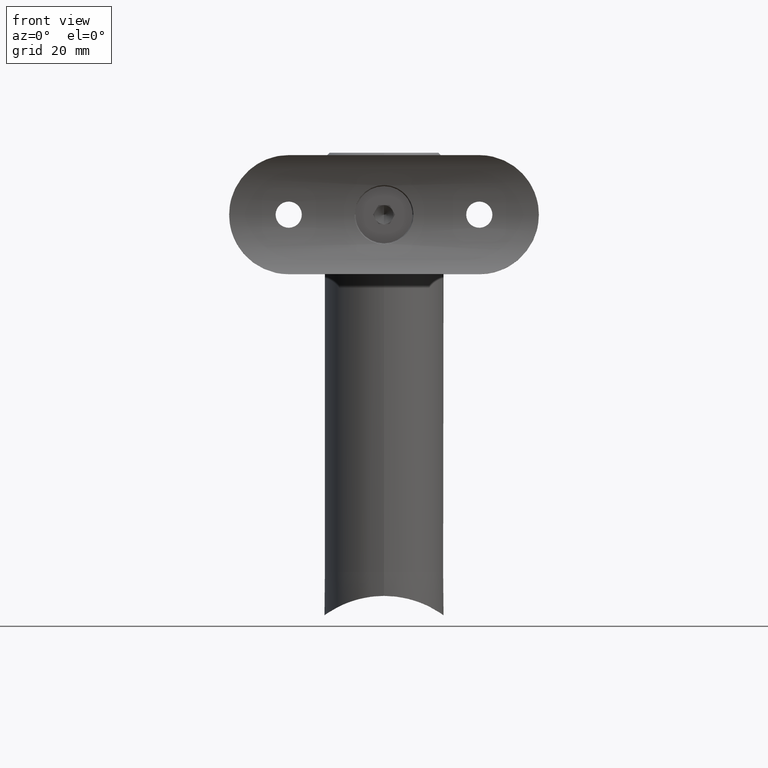
[diagram: clean part render]
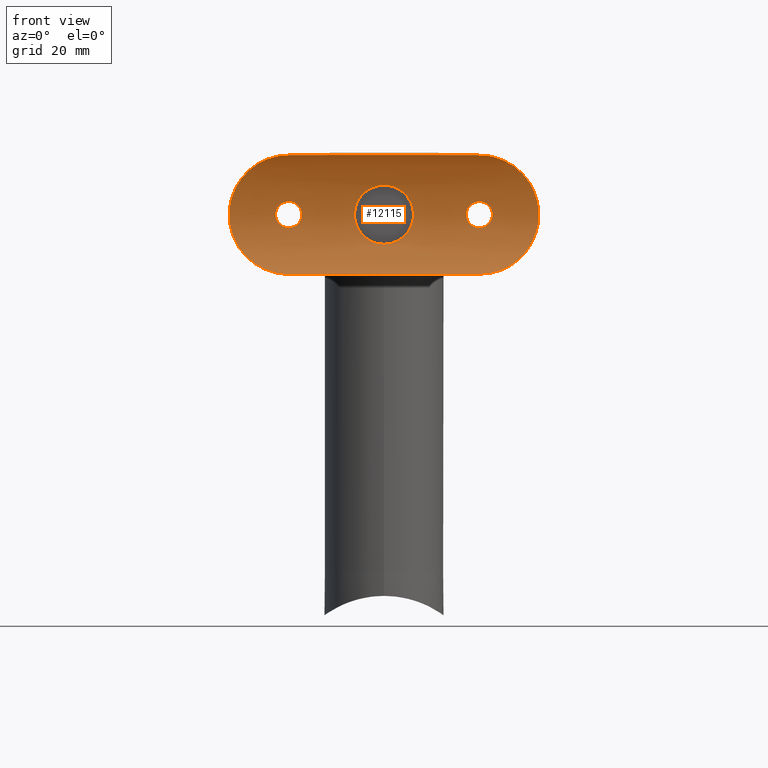
[diagram: same view with one face highlighted and labeled with its STEP entity id]
A machine part, front view. The second image highlights one B-rep face of the part: STEP entity #12115.
In plain terms, the highlighted cylindrical surface (partial cylindrical patch) has radius 21.2 mm, axis along (1, -0, -0).
Its self-contained STEP definition (entity closure, byte-faithful):
#24 = CARTESIAN_POINT ( 'NONE',  ( 0.000000000000000000, 25.19999999999999929, 32.50000000000000000 ) ) ;
#118 = CARTESIAN_POINT ( 'NONE',  ( 0.2030368414505796248, 4.000000000000000000, 6.199999999999997513 ) ) ;
#190 = CARTESIAN_POINT ( 'NONE',  ( 0.4062759576758470659, 4.002916140720868654, 6.190051217244710635 ) ) ;
#231 = CARTESIAN_POINT ( 'NONE',  ( -9.137400882198218000, 6.067735843547091612, -28.53911077795326889 ) ) ;
#314 = CARTESIAN_POINT ( 'NONE',  ( 7.592416288989400845E-16, 3.999999999999999112, 6.200000000000000178 ) ) ;
#345 = CARTESIAN_POINT ( 'NONE',  ( -2.732448131527089874, 4.176798623020333778, 19.64083347463661511 ) ) ;
#478 = CARTESIAN_POINT ( 'NONE',  ( 0.000000000000000000, 4.000000000000003553, 32.50000000000000000 ) ) ;
#606 = CARTESIAN_POINT ( 'NONE',  ( -3.786629156918399630, 4.338142867486670440, 4.925906886092637826 ) ) ;
#665 = CARTESIAN_POINT ( 'NONE',  ( -3.115573705378211322, 4.227426388833972482, 5.375529695651892759 ) ) ;
#679 = CARTESIAN_POINT ( 'NONE',  ( 3.367779122181911787E-16, 3.999999999999998224, 22.75000000000000000 ) ) ;
#734 = CARTESIAN_POINT ( 'NONE',  ( -5.881789180924415383, 4.831612074386678835, 2.003047415504014328 ) ) ;
#757 = B_SPLINE_CURVE_WITH_KNOTS ( 'NONE', 3,
 ( #10569, #4041, #8969, #5611, #13537, #15120, #1141, #16719, #12159, #19819, #5673, #5886, #17621, #8178, #8047, #12793, #19192, #16098, #5063, #6671, #19049, #17689, #5134, #6742, #9872, #11493, #16242, #6818, #13203, #11562, #13396, #8639, #2375, #3970 ),
 .UNSPECIFIED., .F., .F.,
 ( 4, 2, 2, 2, 2, 2, 2, 2, 2, 2, 2, 2, 2, 2, 2, 2, 4 ),
 ( 0.000000000000000000, 0.0005379262171995833914, 0.001075852434399166566, 0.001613778651598749741, 0.002151704868798332698, 0.002689631085997915873, 0.003227557303197499047, 0.003765483520397081788, 0.004303409737596664529, 0.004841335954796247704, 0.005379262171995830878, 0.005917188389195414920, 0.006455114606394998095, 0.006993040823594581269, 0.007530967040794164444, 0.008068893257993748486, 0.008606819475193330793 ),
 .UNSPECIFIED. ) ;
#782 = CARTESIAN_POINT ( 'NONE',  ( 0.8866782665786225870, 4.017902508735802236, 22.60928778284144514 ) ) ;
#801 = CARTESIAN_POINT ( 'NONE',  ( -5.880518383112274705, 4.831262036951020633, -2.005760101010093166 ) ) ;
#846 = EDGE_CURVE ( 'NONE', #1808, #6235, #16949, .T. ) ;
#865 = CARTESIAN_POINT ( 'NONE',  ( -0.8127858873897744196, 4.011750783907844564, 6.160182076640255744 ) ) ;
#886 = CARTESIAN_POINT ( 'NONE',  ( 2.609840854434543722, 4.161141973927123594, -20.88526086944559879 ) ) ;
#891 = CARTESIAN_POINT ( 'NONE',  ( 2.899666870893740089, 4.195241269652991711, 32.16611798350432139 ) ) ;
#915 = CARTESIAN_POINT ( 'NONE',  ( 0.7132524485124351887, 4.011257119951380901, 22.66205717100720207 ) ) ;
#1010 = CARTESIAN_POINT ( 'NONE',  ( 2.385756333773413562, 4.134429975355512710, -18.62054771452227442 ) ) ;
#1081 = CARTESIAN_POINT ( 'NONE',  ( 0.8904061588435627783, 4.018060069706596238, -22.60801385164950617 ) ) ;
#1141 = CARTESIAN_POINT ( 'NONE',  ( -1.378123184462039408, 4.044310109982501622, -22.38653694269787664 ) ) ;
#1213 = CARTESIAN_POINT ( 'NONE',  ( 12.50000000000000355, 8.077208171562681116, 20.84935178333090988 ) ) ;
#1219 = EDGE_CURVE ( 'NONE', #6235, #1808, #18644, .T. ) ;
#1324 = CARTESIAN_POINT ( 'NONE',  ( 6.199815462031645907, 4.926808631255473969, -0.4097143991521178252 ) ) ;
#1419 = VERTEX_POINT ( 'NONE', #2159 ) ;
#1463 = CARTESIAN_POINT ( 'NONE',  ( 1.680376849083645263, 4.050750502668659436, -32.41446829867825841 ) ) ;
#1599 = CARTESIAN_POINT ( 'NONE',  ( 1.017672897940636423, 4.023491260540420278, 6.119313430627518535 ) ) ;
#1604 = B_SPLINE_CURVE_WITH_KNOTS ( 'NONE', 3,
 ( #16068, #2021, #8217, #915, #782, #19717, #16694, #5585, #11799, #8805, #14821, #15088, #5386, #10325, #6987, #16488, #18053, #8672, #2346, #16551, #13302, #5642, #11860, #13438, #16620, #19786, #10260, #18184, #7248, #7115, #19855, #8741, #10396, #4009 ),
 .UNSPECIFIED., .F., .F.,
 ( 4, 2, 2, 2, 2, 2, 2, 2, 2, 2, 2, 2, 2, 2, 2, 2, 4 ),
 ( 0.008606819475193330793, 0.009144616342346784110, 0.009682413209500237428, 0.01022021007665369075, 0.01075800694380714406, 0.01129580381096059565, 0.01183360067811404896, 0.01237139754526750228, 0.01290919441242095560, 0.01344699127957440891, 0.01398478814672786223, 0.01452258501388131381, 0.01506038188103476713, 0.01559817874818822218, 0.01613597561534167724, 0.01667377248249512708, 0.01721156934964858040 ),
 .UNSPECIFIED. ) ;
#1808 = VERTEX_POINT ( 'NONE', #9475 ) ;
#1845 = CARTESIAN_POINT ( 'NONE',  ( -12.49999999999999822, 8.077208171562684669, 20.84887060648279089 ) ) ;
#1848 = CARTESIAN_POINT ( 'NONE',  ( 9.413556458363910195, 6.194533709361365048, -28.26249860773988942 ) ) ;
#1874 = CARTESIAN_POINT ( 'NONE',  ( 12.41450038045377369, 8.013930239834728297, -21.67799915308982506 ) ) ;
#1899 = ORIENTED_EDGE ( 'NONE', *, *, #17462, .T. ) ;
#1916 = CARTESIAN_POINT ( 'NONE',  ( -2.750066109718240615, 4.179126174284532702, 20.17856011520192538 ) ) ;
#1977 = CARTESIAN_POINT ( 'NONE',  ( -12.41450038045377013, 8.013930239834728297, 21.67799915308982150 ) ) ;
#2021 = CARTESIAN_POINT ( 'NONE',  ( 0.1795313291912454257, 3.999999999999999112, 22.75000000000000000 ) ) ;
#2051 = CARTESIAN_POINT ( 'NONE',  ( 0.000000000000000000, 4.000000000000003553, 17.25000000000000000 ) ) ;
#2109 = ORIENTED_EDGE ( 'NONE', *, *, #17063, .F. ) ;
#2127 = CARTESIAN_POINT ( 'NONE',  ( -7.329839308601783898, 5.304310467230258119, 30.13339322785993701 ) ) ;
#2159 = CARTESIAN_POINT ( 'NONE',  ( -12.49999999999999645, 8.077208171562682892, -20.00000000000000355 ) ) ;
#2160 = CARTESIAN_POINT ( 'NONE',  ( 3.367779122181911787E-16, 3.999999999999998224, -17.25000000000000000 ) ) ;
#2175 = CARTESIAN_POINT ( 'NONE',  ( 0.000000000000000000, 4.000000000000003553, -32.50000000000000000 ) ) ;
#2179 = CARTESIAN_POINT ( 'NONE',  ( -5.040362975952087154, 4.607573317518929734, 3.615960530335528667 ) ) ;
#2235 = CARTESIAN_POINT ( 'NONE',  ( -4.094807073670160058, 4.398608595898156892, -4.659780459620763260 ) ) ;
#2252 = DIRECTION ( 'NONE',  ( 0.000000000000000000, 0.000000000000000000, -1.000000000000000000 ) ) ;
#2346 = CARTESIAN_POINT ( 'NONE',  ( 2.732401257049309251, 4.176793343845547568, 19.64134432217261406 ) ) ;
#2375 = CARTESIAN_POINT ( 'NONE',  ( -0.1795745097806660806, 3.999999999999999112, -17.25000000000000355 ) ) ;
#2383 = CARTESIAN_POINT ( 'NONE',  ( 12.49999999999999645, 8.077208171562682892, 32.50000000000000000 ) ) ;
#2398 = CARTESIAN_POINT ( 'NONE',  ( 0.000000000000000000, 4.000000000000003553, 32.50000000000000000 ) ) ;
#2425 = CARTESIAN_POINT ( 'NONE',  ( 0.000000000000000000, 4.000000000000003553, -6.200000000000000178 ) ) ;
#2428 = CARTESIAN_POINT ( 'NONE',  ( -6.149123077008092686, 4.911364389243151329, 0.8185882661226046020 ) ) ;
#2445 = CARTESIAN_POINT ( 'NONE',  ( 2.661687631057439773, 4.167723121593580160, -19.28582453466965063 ) ) ;
#2660 = CARTESIAN_POINT ( 'NONE',  ( 1.678074891520452860, 4.065981542221561718, -17.81386429844008745 ) ) ;
#2791 = CARTESIAN_POINT ( 'NONE',  ( 8.281128637814752835, 5.681454197595393829, 29.37193506601935766 ) ) ;
#2891 = CARTESIAN_POINT ( 'NONE',  ( 0.000000000000000000, 4.000000000000003553, -6.200000000000000178 ) ) ;
#2959 = CARTESIAN_POINT ( 'NONE',  ( 5.999845100848646418, 4.866559966669621318, 1.614636308907438034 ) ) ;
#3110 = CARTESIAN_POINT ( 'NONE',  ( 6.159285855167618173, 4.914287723189210588, 0.8175508538016790228 ) ) ;
#3224 = CARTESIAN_POINT ( 'NONE',  ( -9.913493343117119494, 6.458488917965730991, -27.62450805720244063 ) ) ;
#3302 = CARTESIAN_POINT ( 'NONE',  ( -12.06337854131604104, 7.766211032369477074, -23.30110932669051138 ) ) ;
#3328 = B_SPLINE_CURVE_WITH_KNOTS ( 'NONE', 3,
 ( #18850, #6060, #18643, #7918, #14040, #17211, #17427, #3368, #9757, #9617, #8127, #5077, #14457, #231, #17700, #3224, #3497, #14244, #19206, #15833, #4864, #3302, #12735, #4804, #16112, #8193 ),
 .UNSPECIFIED., .F., .F.,
 ( 4, 2, 2, 2, 2, 2, 2, 2, 2, 2, 2, 2, 4 ),
 ( 0.000000000000000000, 0.002504973849704560367, 0.003757460774556842503, 0.005009947699409125071, 0.007514921549113700618, 0.008767408473965990559, 0.01001989539881828310, 0.01127238232367057391, 0.01252486924852286646, 0.01502984309822744460, 0.01628233002307974062, 0.01753481694793203316, 0.02003979079763661131 ),
 .UNSPECIFIED. ) ;
#3329 = FACE_OUTER_BOUND ( 'NONE', #5352, .T. ) ;
#3368 = CARTESIAN_POINT ( 'NONE',  ( -5.620540116801275410, 4.743934902012521881, -31.19511631914028982 ) ) ;
#3497 = CARTESIAN_POINT ( 'NONE',  ( -10.15465027284116317, 6.588481366190972466, -27.30023861733291213 ) ) ;
#3558 = CARTESIAN_POINT ( 'NONE',  ( -9.413556458363908419, 6.194533709361361495, 28.26249860773988232 ) ) ;
#3631 = CARTESIAN_POINT ( 'NONE',  ( -1.378123184462039408, 4.044310109982501622, 17.61346305730212691 ) ) ;
#3695 = CARTESIAN_POINT ( 'NONE',  ( -3.307977677724411869, 4.255752225252749987, 32.06158553790278631 ) ) ;
#3708 = VERTEX_POINT ( 'NONE', #6527 ) ;
#3827 = CARTESIAN_POINT ( 'NONE',  ( -3.113274347633549155, 4.227071444589109994, -5.376930453545246458 ) ) ;
#3896 = CARTESIAN_POINT ( 'NONE',  ( -4.926415323581236017, 4.579015012586133082, -3.786363308942862105 ) ) ;
#3903 = CARTESIAN_POINT ( 'NONE',  ( -1.677753435559828699, 4.065965523637380841, 22.18625452600545955 ) ) ;
#3958 = CARTESIAN_POINT ( 'NONE',  ( -6.001055605421503181, 4.866918079478865344, -1.610286533790262764 ) ) ;
#3969 = CARTESIAN_POINT ( 'NONE',  ( -0.7148038119665011125, 4.011319192678680423, 22.66156243700921280 ) ) ;
#3970 = CARTESIAN_POINT ( 'NONE',  ( 3.367779122181911787E-16, 3.999999999999998224, -17.25000000000000000 ) ) ;
#4009 = CARTESIAN_POINT ( 'NONE',  ( 0.000000000000000000, 4.000000000000003553, 17.25000000000000000 ) ) ;
#4030 = CARTESIAN_POINT ( 'NONE',  ( -2.010948507461656209, 4.092239804135303416, -5.878775317708504033 ) ) ;
#4041 = CARTESIAN_POINT ( 'NONE',  ( -0.1819051431628466997, 4.000000000000004441, -22.74999999999999645 ) ) ;
#4049 = CARTESIAN_POINT ( 'NONE',  ( 2.472041895201342765, 4.144506056729611032, -21.21818100494817472 ) ) ;
#4113 = ORIENTED_EDGE ( 'NONE', *, *, #846, .T. ) ;
#4125 = CARTESIAN_POINT ( 'NONE',  ( 3.302492734939012298, 4.254893961373074518, 32.06307353030366158 ) ) ;
#4183 = CARTESIAN_POINT ( 'NONE',  ( 2.470320627314232631, 4.144303149418656851, -18.77831722767231781 ) ) ;
#4248 = CARTESIAN_POINT ( 'NONE',  ( 2.749871213976514461, 4.179100677581973677, -19.81625335284126876 ) ) ;
#4253 = CARTESIAN_POINT ( 'NONE',  ( 12.06337854131604459, 7.766211032369483291, 23.30110932669050783 ) ) ;
#4433 = CARTESIAN_POINT ( 'NONE',  ( 7.341278511869139045, 5.308480845423155792, 30.12523760879152945 ) ) ;
#4502 = CARTESIAN_POINT ( 'NONE',  ( 12.16642152362135576, 7.838305269537123365, 22.89829279892429170 ) ) ;
#4549 = CARTESIAN_POINT ( 'NONE',  ( 4.663190020617145493, 4.518800532355244037, 4.090909915203146952 ) ) ;
#4553 = CARTESIAN_POINT ( 'NONE',  ( 5.620677554943403820, 4.744079628429565432, -31.19483348254707167 ) ) ;
#4617 = B_SPLINE_CURVE_WITH_KNOTS ( 'NONE', 3,
 ( #19759, #13549, #10299, #891, #4125, #18290, #12032, #7563, #15404, #4433, #15333, #2791, #5970, #15265, #13685, #16989, #6039, #7492, #10513, #13809, #12099, #4253, #4502, #18492, #1213, #12170 ),
 .UNSPECIFIED., .F., .F.,
 ( 4, 2, 2, 2, 2, 2, 2, 2, 2, 2, 2, 2, 4 ),
 ( 0.000000000000000000, 0.002504973849704574245, 0.003757460774556858982, 0.005009947699409142419, 0.007514921549113717965, 0.008767408473966002702, 0.01001989539881828657, 0.01127238232367057218, 0.01252486924852285778, 0.01502984309822744113, 0.01628233002307973715, 0.01753481694793202969, 0.02003979079763661478 ),
 .UNSPECIFIED. ) ;
#4667 = DIRECTION ( 'NONE',  ( 0.000000000000000000, 0.000000000000000000, -1.000000000000000000 ) ) ;
#4804 = CARTESIAN_POINT ( 'NONE',  ( -12.41439949553292443, 8.013851170719201278, -21.67938694774175090 ) ) ;
#4834 = VERTEX_POINT ( 'NONE', #2160 ) ;
#4864 = CARTESIAN_POINT ( 'NONE',  ( -11.81770469574649063, 7.598751313526324935, -24.09442063569179027 ) ) ;
#4993 = CARTESIAN_POINT ( 'NONE',  ( -2.608905194646346626, 4.161026952861326400, 19.11220103331600484 ) ) ;
#5062 = CARTESIAN_POINT ( 'NONE',  ( -2.071631555332959174, 4.101077549125282218, 18.18259656438756977 ) ) ;
#5063 = CARTESIAN_POINT ( 'NONE',  ( -2.732132821934195821, 4.176757944270250711, -19.63901098424382852 ) ) ;
#5077 = CARTESIAN_POINT ( 'NONE',  ( -8.281128637814752835, 5.681454197595392053, -29.37193506601935411 ) ) ;
#5134 = CARTESIAN_POINT ( 'NONE',  ( -2.385800123763040403, 4.134436225150952993, -18.62067939128672833 ) ) ;
#5254 = VERTEX_POINT ( 'NONE', #2175 ) ;
#5282 = CARTESIAN_POINT ( 'NONE',  ( -1.676932437200537862, 4.065896379661495530, 17.81306614378071274 ) ) ;
#5352 = EDGE_LOOP ( 'NONE', ( #17104, #14109, #1899, #8450, #16704, #11379 ) ) ;
#5386 = CARTESIAN_POINT ( 'NONE',  ( 2.470320627314232631, 4.144303149418655963, 21.22168277232767863 ) ) ;
#5392 = CARTESIAN_POINT ( 'NONE',  ( -12.49999999999999645, 8.077208171562682892, 20.00000000000000000 ) ) ;
#5403 = CARTESIAN_POINT ( 'NONE',  ( -12.49999999999999645, 8.077208171562682892, 32.50000000000004974 ) ) ;
#5406 = CARTESIAN_POINT ( 'NONE',  ( -5.379690077919871527, 4.692598300684345247, -3.108866306751584929 ) ) ;
#5416 = CARTESIAN_POINT ( 'NONE',  ( -0.8862475435800301060, 4.017876742908403465, 22.60950864251029202 ) ) ;
#5470 = CARTESIAN_POINT ( 'NONE',  ( -1.615120754472902043, 4.057837982230971363, -5.999738083962667723 ) ) ;
#5585 = CARTESIAN_POINT ( 'NONE',  ( 1.678074891520452860, 4.065981542221561718, 22.18613570155991255 ) ) ;
#5610 = CARTESIAN_POINT ( 'NONE',  ( -2.186773948034176573, 4.112846586535696680, 21.67707700251596847 ) ) ;
#5611 = CARTESIAN_POINT ( 'NONE',  ( -0.7124931324106921204, 4.011245734592163714, -22.66214424227139546 ) ) ;
#5627 = EDGE_CURVE ( 'NONE', #12368, #4834, #757, .T. ) ;
#5642 = CARTESIAN_POINT ( 'NONE',  ( 2.472041895201343653, 4.144506056729611032, 18.78181899505182528 ) ) ;
#5673 = CARTESIAN_POINT ( 'NONE',  ( -2.185395019286269669, 4.112698827525288259, -21.67905958301374270 ) ) ;
#5679 = CARTESIAN_POINT ( 'NONE',  ( 2.750127420739392203, 4.179134195129149631, -20.17987132482983981 ) ) ;
#5756 = CARTESIAN_POINT ( 'NONE',  ( 0.8866782665786225870, 4.017902508735803124, -17.39071221715855131 ) ) ;
#5772 = CARTESIAN_POINT ( 'NONE',  ( 10.82196766755579453, 6.962884092408003767, -26.30774772896643654 ) ) ;
#5826 = CARTESIAN_POINT ( 'NONE',  ( 0.7132524485124351887, 4.011257119951380012, -17.33794282899279438 ) ) ;
#5840 = EDGE_LOOP ( 'NONE', ( #9234, #8498 ) ) ;
#5886 = CARTESIAN_POINT ( 'NONE',  ( -2.386425186726742531, 4.134502214352236749, -21.37846556060996761 ) ) ;
#5893 = CARTESIAN_POINT ( 'NONE',  ( 1.380612209768696808, 4.044466479386152891, -22.38518657137107581 ) ) ;
#5944 = CARTESIAN_POINT ( 'NONE',  ( 5.647136009984151883, 4.765801619651585774, 2.567385003801225363 ) ) ;
#5970 = CARTESIAN_POINT ( 'NONE',  ( 8.575483413111351538, 5.809365382594063654, 29.10327369640210193 ) ) ;
#6039 = CARTESIAN_POINT ( 'NONE',  ( 10.15465027284116317, 6.588481366190970689, 27.30023861733291213 ) ) ;
#6060 = CARTESIAN_POINT ( 'NONE',  ( -0.8482395851185927649, 4.000000000000004441, -32.50000000000000000 ) ) ;
#6153 = CARTESIAN_POINT ( 'NONE',  ( 4.096310951360306873, 4.397454258333616472, 4.671633161736810536 ) ) ;
#6156 = CARTESIAN_POINT ( 'NONE',  ( 4.105999603327870950, 4.397476152548235540, -31.81377709549067134 ) ) ;
#6218 = CARTESIAN_POINT ( 'NONE',  ( 2.903656776258744188, 4.195777031998702000, -32.16519419076993813 ) ) ;
#6235 = VERTEX_POINT ( 'NONE', #2425 ) ;
#6277 = DIRECTION ( 'NONE',  ( -1.000000000000000000, 0.000000000000000000, 0.000000000000000000 ) ) ;
#6363 = CARTESIAN_POINT ( 'NONE',  ( 0.8131667364258976516, 4.014623341798529310, 6.149841793466610973 ) ) ;
#6527 = CARTESIAN_POINT ( 'NONE',  ( 12.50000000000000355, 8.077208171562682892, -20.00000000000000355 ) ) ;
#6600 = CARTESIAN_POINT ( 'NONE',  ( -11.20502510935213358, 7.199201472346334896, 25.59990303977420467 ) ) ;
#6670 = CARTESIAN_POINT ( 'NONE',  ( -4.105999603327870950, 4.397476152548232875, 31.81377709549067845 ) ) ;
#6671 = CARTESIAN_POINT ( 'NONE',  ( -2.661820409375530883, 4.167739817158831350, -19.28615482461628616 ) ) ;
#6742 = CARTESIAN_POINT ( 'NONE',  ( -2.186773948034176573, 4.112846586535696680, -18.32292299748403863 ) ) ;
#6818 = CARTESIAN_POINT ( 'NONE',  ( -1.380068960992047122, 4.044440931482737867, -17.61463312970132833 ) ) ;
#6938 = CARTESIAN_POINT ( 'NONE',  ( -6.199976275218669564, 4.926857811692361366, 0.2050584408067449849 ) ) ;
#6987 = CARTESIAN_POINT ( 'NONE',  ( 2.661687631057439773, 4.167723121593580160, 20.71417546533034582 ) ) ;
#7077 = CARTESIAN_POINT ( 'NONE',  ( -5.375911654361290815, 4.691641794250568154, 3.114689684330423702 ) ) ;
#7115 = CARTESIAN_POINT ( 'NONE',  ( 0.8904061588435613350, 4.018060069706597126, 17.39198614835049739 ) ) ;
#7248 = CARTESIAN_POINT ( 'NONE',  ( 1.221068417309933096, 4.034547152056660480, 17.52946335822548107 ) ) ;
#7287 = CARTESIAN_POINT ( 'NONE',  ( 0.1818614021479880161, 4.000000000000004441, -22.75000000000000000 ) ) ;
#7356 = CARTESIAN_POINT ( 'NONE',  ( 3.367779122181911787E-16, 3.999999999999998224, -17.25000000000000000 ) ) ;
#7361 = B_SPLINE_CURVE_WITH_KNOTS ( 'NONE', 3,
 ( #7356, #8906, #12095, #5826, #5756, #10509, #18282, #2660, #13613, #13679, #13545, #1010, #4183, #13480, #2445, #16792, #4248, #5679, #8711, #12028, #886, #4049, #13749, #16725, #19894, #11967, #7419, #5893, #18362, #1081, #15327, #10435, #7287, #19957 ),
 .UNSPECIFIED., .F., .F.,
 ( 4, 2, 2, 2, 2, 2, 2, 2, 2, 2, 2, 2, 2, 2, 2, 2, 4 ),
 ( 0.008606819475193330793, 0.009144616342346784110, 0.009682413209500237428, 0.01022021007665368901, 0.01075800694380714233, 0.01129580381096059565, 0.01183360067811404723, 0.01237139754526750055, 0.01290919441242095386, 0.01344699127957440718, 0.01398478814672786050, 0.01452258501388131208, 0.01506038188103476540, 0.01559817874818821871, 0.01613597561534167030, 0.01667377248249512361, 0.01721156934964857693 ),
 .UNSPECIFIED. ) ;
#7419 = CARTESIAN_POINT ( 'NONE',  ( 1.681080587850646069, 4.066220009834251137, -22.18384365538448222 ) ) ;
#7492 = CARTESIAN_POINT ( 'NONE',  ( 10.82440004562426772, 6.964469962909634049, 26.30269686619442737 ) ) ;
#7563 = CARTESIAN_POINT ( 'NONE',  ( 5.620540116801272745, 4.743934902012521881, 31.19511631914027916 ) ) ;
#7605 = CARTESIAN_POINT ( 'NONE',  ( 2.757420443994034187, 4.176702735129016908, -5.567906872668626939 ) ) ;
#7736 = CARTESIAN_POINT ( 'NONE',  ( 3.112723415739962807, 4.226992834464526005, -5.377229253643299955 ) ) ;
#7807 = CARTESIAN_POINT ( 'NONE',  ( 4.669850002265738986, 4.518683000541095396, -4.098065572747930041 ) ) ;
#7916 = AXIS2_PLACEMENT_3D ( 'NONE', #24, #4667, #6277 ) ;
#7918 = CARTESIAN_POINT ( 'NONE',  ( -2.899666870893738757, 4.195241269652990823, -32.16611798350430007 ) ) ;
#8011 = EDGE_LOOP ( 'NONE', ( #10308, #2109 ) ) ;
#8015 = CARTESIAN_POINT ( 'NONE',  ( 2.004810271221212137, 4.091654728586200385, 5.880864991610112114 ) ) ;
#8047 = CARTESIAN_POINT ( 'NONE',  ( -2.661782999446305364, 4.167734782188002640, -20.71427211081360653 ) ) ;
#8127 = CARTESIAN_POINT ( 'NONE',  ( -7.664485972305215000, 5.431176652695318019, -29.88260659836541322 ) ) ;
#8177 = CARTESIAN_POINT ( 'NONE',  ( -6.328572668113499944, 4.954279635400570037, 30.80962434064442235 ) ) ;
#8178 = CARTESIAN_POINT ( 'NONE',  ( -2.608905194646344849, 4.161026952861326400, -20.88779896668399516 ) ) ;
#8193 = CARTESIAN_POINT ( 'NONE',  ( -12.49999999999999645, 8.077208171562682892, -20.00000000000000355 ) ) ;
#8217 = CARTESIAN_POINT ( 'NONE',  ( 0.3580975733128174410, 4.002280310842218469, 22.73258916872026347 ) ) ;
#8244 = CARTESIAN_POINT ( 'NONE',  ( -2.732132821934195821, 4.176757944270250711, 20.36098901575617859 ) ) ;
#8315 = CARTESIAN_POINT ( 'NONE',  ( -5.620677554943400267, 4.744079628429565432, 31.19483348254708943 ) ) ;
#8379 = CARTESIAN_POINT ( 'NONE',  ( -12.08472937843046857, 7.780467016947508974, 23.30072972297891454 ) ) ;
#8450 = ORIENTED_EDGE ( 'NONE', *, *, #17996, .F. ) ;
#8498 = ORIENTED_EDGE ( 'NONE', *, *, #10835, .F. ) ;
#8630 = CARTESIAN_POINT ( 'NONE',  ( -0.4119645630677282733, 4.000000000000004441, -6.200000000000001954 ) ) ;
#8639 = CARTESIAN_POINT ( 'NONE',  ( -0.3619936041940364779, 4.002356275409492348, -17.26800078217016576 ) ) ;
#8672 = CARTESIAN_POINT ( 'NONE',  ( 2.750127420739392203, 4.179134195129149631, 19.82012867517015309 ) ) ;
#8689 = CARTESIAN_POINT ( 'NONE',  ( -4.243914848844816845, 4.428619096507510733, -4.524331232725836927 ) ) ;
#8701 = CARTESIAN_POINT ( 'NONE',  ( -2.385800123763040403, 4.134436225150952993, 21.37932060871328233 ) ) ;
#8711 = CARTESIAN_POINT ( 'NONE',  ( 2.732401257049310139, 4.176793343845547568, -20.35865567782738594 ) ) ;
#8741 = CARTESIAN_POINT ( 'NONE',  ( 0.3616363690777163464, 4.002339231935220454, 17.26786438213851227 ) ) ;
#8773 = CARTESIAN_POINT ( 'NONE',  ( -1.380068960992047122, 4.044440931482737867, 22.38536687029867167 ) ) ;
#8805 = CARTESIAN_POINT ( 'NONE',  ( 2.070070275079196165, 4.100923494947652514, 21.81918506344151609 ) ) ;
#8906 = CARTESIAN_POINT ( 'NONE',  ( 0.1795313291912454257, 4.000000000000000000, -17.24999999999999645 ) ) ;
#8969 = CARTESIAN_POINT ( 'NONE',  ( -0.3607321243662356403, 4.002339135696566075, -22.73212934628676862 ) ) ;
#9154 = CARTESIAN_POINT ( 'NONE',  ( 5.378818155987182159, 4.692370203185661559, -3.110343844612701414 ) ) ;
#9224 = CARTESIAN_POINT ( 'NONE',  ( 5.870726965772577799, 4.828981579045524164, -2.003991366813224762 ) ) ;
#9234 = ORIENTED_EDGE ( 'NONE', *, *, #5627, .F. ) ;
#9293 = CARTESIAN_POINT ( 'NONE',  ( 6.159961913390981536, 4.914491676877350557, -0.8135405019375596680 ) ) ;
#9330 = CARTESIAN_POINT ( 'NONE',  ( 12.50000000000000355, 8.077208171562682892, 20.00000000000000000 ) ) ;
#9402 = CARTESIAN_POINT ( 'NONE',  ( 9.919985569846216933, 6.456967504733635010, -27.64830385797707279 ) ) ;
#9475 = CARTESIAN_POINT ( 'NONE',  ( 7.592416288989400845E-16, 3.999999999999999112, 6.200000000000000178 ) ) ;
#9573 = CARTESIAN_POINT ( 'NONE',  ( 1.618032308649836049, 4.058034776147023237, 5.999049208500471408 ) ) ;
#9604 = CARTESIAN_POINT ( 'NONE',  ( 8.570261194392806203, 5.807054850030223925, -29.10818890720388197 ) ) ;
#9617 = CARTESIAN_POINT ( 'NONE',  ( -7.341278511869139933, 5.308480845423154904, -30.12523760879152235 ) ) ;
#9742 = CARTESIAN_POINT ( 'NONE',  ( -2.185395019286269669, 4.112698827525288259, 18.32094041698626086 ) ) ;
#9757 = CARTESIAN_POINT ( 'NONE',  ( -6.332596659029534614, 4.955350400242432229, -30.80774938862475310 ) ) ;
#9809 = CARTESIAN_POINT ( 'NONE',  ( -9.919985569846220486, 6.456967504733637675, 27.64830385797707635 ) ) ;
#9832 = CARTESIAN_POINT ( 'NONE',  ( 3.367779122181911787E-16, 3.999999999999998224, 22.75000000000000000 ) ) ;
#9872 = CARTESIAN_POINT ( 'NONE',  ( -2.072974537964579422, 4.101199954475355902, -18.18391155527806902 ) ) ;
#9943 = CARTESIAN_POINT ( 'NONE',  ( -7.655030421865182788, 5.427483003039802689, 29.89001198582322161 ) ) ;
#10021 = CARTESIAN_POINT ( 'NONE',  ( -0.8487943003396123398, 4.000000000000004441, 32.50000000000000711 ) ) ;
#10086 = CARTESIAN_POINT ( 'NONE',  ( -1.219185299398134692, 4.034429665306586976, 22.47154956850333107 ) ) ;
#10145 = CARTESIAN_POINT ( 'NONE',  ( -4.663652792075827946, 4.518904683150087642, 4.090386201118042742 ) ) ;
#10222 = CARTESIAN_POINT ( 'NONE',  ( -1.816481100832602946, 4.077571559917686272, 22.07263047464326533 ) ) ;
#10260 = CARTESIAN_POINT ( 'NONE',  ( 1.681080587850646513, 4.066220009834252025, 17.81615634461552844 ) ) ;
#10292 = ORIENTED_EDGE ( 'NONE', *, *, #1219, .T. ) ;
#10299 = CARTESIAN_POINT ( 'NONE',  ( 1.678717414094957006, 4.050679987938036852, 32.41458363564551348 ) ) ;
#10308 = ORIENTED_EDGE ( 'NONE', *, *, #14944, .F. ) ;
#10325 = CARTESIAN_POINT ( 'NONE',  ( 2.608656701138332146, 4.160994223088358979, 20.88876488091199235 ) ) ;
#10396 = CARTESIAN_POINT ( 'NONE',  ( 0.1818614021479880716, 4.000000000000003553, 17.25000000000000355 ) ) ;
#10435 = CARTESIAN_POINT ( 'NONE',  ( 0.3616363690777175677, 4.002339231935220454, -22.73213561786149839 ) ) ;
#10458 = VERTEX_POINT ( 'NONE', #9330 ) ;
#10509 = CARTESIAN_POINT ( 'NONE',  ( 1.217645684097065528, 4.034348782382251919, -17.52777022303583010 ) ) ;
#10513 = CARTESIAN_POINT ( 'NONE',  ( 11.20516604691104412, 7.199313738460709544, 25.59920734051991076 ) ) ;
#10569 = CARTESIAN_POINT ( 'NONE',  ( 0.000000000000000000, 4.000000000000003553, -22.75000000000000000 ) ) ;
#10692 = CARTESIAN_POINT ( 'NONE',  ( 2.194976365919127481, 4.113092270295330977, -5.802009769465502842 ) ) ;
#10714 = EDGE_CURVE ( 'NONE', #10458, #3708, #14673, .T. ) ;
#10759 = CARTESIAN_POINT ( 'NONE',  ( 5.802187343198303537, 4.809289013939602953, -2.194383859389318125 ) ) ;
#10818 = CARTESIAN_POINT ( 'NONE',  ( 5.039919667627461131, 4.607463959195590597, 3.616591813798907484 ) ) ;
#10835 = EDGE_CURVE ( 'NONE', #4834, #12368, #7361, .T. ) ;
#10891 = CARTESIAN_POINT ( 'NONE',  ( 4.094326422246357566, 4.398512013746140425, -4.660215972866605050 ) ) ;
#10966 = CARTESIAN_POINT ( 'NONE',  ( 3.616965685610801451, 4.310132159675148955, -5.039689435510610771 ) ) ;
#11254 = CARTESIAN_POINT ( 'NONE',  ( 3.785642414934743183, 4.337972188704466880, 4.926613147122202996 ) ) ;
#11285 = CARTESIAN_POINT ( 'NONE',  ( -1.818257073104401655, 4.077733854882373166, 17.92911763614324983 ) ) ;
#11345 = CARTESIAN_POINT ( 'NONE',  ( -2.749933515456789657, 4.179108828000703824, 19.81940934927520459 ) ) ;
#11379 = ORIENTED_EDGE ( 'NONE', *, *, #17678, .T. ) ;
#11419 = CARTESIAN_POINT ( 'NONE',  ( -12.49999999999999645, 8.077208171562682892, 20.00000000000000000 ) ) ;
#11493 = CARTESIAN_POINT ( 'NONE',  ( -1.816481100832602946, 4.077571559917686272, -17.92736952535673467 ) ) ;
#11562 = CARTESIAN_POINT ( 'NONE',  ( -0.8862475435800301060, 4.017876742908403465, -17.39049135748971864 ) ) ;
#11620 = CARTESIAN_POINT ( 'NONE',  ( -5.567299139647666983, 4.743415462331245003, 2.759134503295393781 ) ) ;
#11667 = VERTEX_POINT ( 'NONE', #5392 ) ;
#11690 = CARTESIAN_POINT ( 'NONE',  ( -4.670038651656182260, 4.518727057530783853, -4.097838989356881179 ) ) ;
#11758 = CARTESIAN_POINT ( 'NONE',  ( -3.782044257028248868, 4.339475784268966407, -4.917025537896089205 ) ) ;
#11771 = CARTESIAN_POINT ( 'NONE',  ( 8.275097588008394567, 5.678865835620641178, -29.37734438678382531 ) ) ;
#11799 = CARTESIAN_POINT ( 'NONE',  ( 1.816424646654584807, 4.077575380348870127, 22.07249288101091977 ) ) ;
#11819 = CARTESIAN_POINT ( 'NONE',  ( -2.752732594556675849, 4.176112168670984559, 5.570115429931240314 ) ) ;
#11826 = CARTESIAN_POINT ( 'NONE',  ( -0.3619936041940364779, 4.002356275409492348, 22.73199921782984134 ) ) ;
#11860 = CARTESIAN_POINT ( 'NONE',  ( 2.387698105049156361, 4.134650465052295054, 18.62388857240058115 ) ) ;
#11890 = CARTESIAN_POINT ( 'NONE',  ( -0.1795745097806660806, 3.999999999999999112, 22.74999999999999645 ) ) ;
#11967 = CARTESIAN_POINT ( 'NONE',  ( 1.819301347328478036, 4.077824434303353840, -22.06995905193008056 ) ) ;
#12028 = CARTESIAN_POINT ( 'NONE',  ( 2.662694855646242864, 4.167851017011682480, -20.71042707611513478 ) ) ;
#12032 = CARTESIAN_POINT ( 'NONE',  ( 4.488656383330081212, 4.477012003651386962, 31.67346302616766351 ) ) ;
#12095 = CARTESIAN_POINT ( 'NONE',  ( 0.3580975733128175520, 4.002280310842218469, -17.26741083127973297 ) ) ;
#12099 = CARTESIAN_POINT ( 'NONE',  ( 11.81770469574649418, 7.598751313526327600, 24.09442063569178671 ) ) ;
#12115 = ADVANCED_FACE ( 'NONE', ( #19094, #3329, #19605, #15401 ), #12913, .F. ) ;
#12159 = CARTESIAN_POINT ( 'NONE',  ( -1.818257073104401655, 4.077733854882373166, -22.07088236385675373 ) ) ;
#12170 = CARTESIAN_POINT ( 'NONE',  ( 12.50000000000000355, 8.077208171562682892, 20.00000000000000000 ) ) ;
#12282 = CARTESIAN_POINT ( 'NONE',  ( 1.413523965907397484, 4.046238141739553207, -6.040123292295846547 ) ) ;
#12368 = VERTEX_POINT ( 'NONE', #19562 ) ;
#12489 = CARTESIAN_POINT ( 'NONE',  ( 0.4120760527752960756, 4.000000000000003553, -6.200000000000001066 ) ) ;
#12735 = CARTESIAN_POINT ( 'NONE',  ( -12.16642152362135221, 7.838305269537122477, -22.89829279892429170 ) ) ;
#12793 = CARTESIAN_POINT ( 'NONE',  ( -2.732448131527089874, 4.176798623020332890, -20.35916652536338489 ) ) ;
#12803 = VECTOR ( 'NONE', #13123, 1000.000000000000000 ) ;
#12861 = CARTESIAN_POINT ( 'NONE',  ( -2.386425186726742531, 4.134502214352236749, 18.62153443939003594 ) ) ;
#12913 = CYLINDRICAL_SURFACE ( 'NONE', #7916, 21.19999999999999929 ) ;
#13066 = CARTESIAN_POINT ( 'NONE',  ( -0.8872650160237223194, 4.017919217146488364, 17.39083392256410576 ) ) ;
#13123 = DIRECTION ( 'NONE',  ( 0.000000000000000000, 0.000000000000000000, -1.000000000000000000 ) ) ;
#13134 = CARTESIAN_POINT ( 'NONE',  ( -4.492959243642649092, 4.477970880216996186, 31.67175631405216762 ) ) ;
#13195 = CARTESIAN_POINT ( 'NONE',  ( -6.189693524949802850, 4.923704884041095298, 0.4116982302871525223 ) ) ;
#13203 = CARTESIAN_POINT ( 'NONE',  ( -1.219185299398134692, 4.034429665306586976, -17.52845043149667603 ) ) ;
#13259 = CARTESIAN_POINT ( 'NONE',  ( -3.617801870425997990, 4.310276163509416669, -5.039094580657917710 ) ) ;
#13302 = CARTESIAN_POINT ( 'NONE',  ( 2.609840854434543722, 4.161141973927123594, 19.11473913055440477 ) ) ;
#13317 = CARTESIAN_POINT ( 'NONE',  ( -4.526339774051667320, 4.488321750760214002, 4.241832482463385290 ) ) ;
#13386 = CARTESIAN_POINT ( 'NONE',  ( -4.097285383190190977, 4.397651019909458725, 4.670741988856835114 ) ) ;
#13396 = CARTESIAN_POINT ( 'NONE',  ( -0.7148038119665011125, 4.011319192678680423, -17.33843756299079786 ) ) ;
#13438 = CARTESIAN_POINT ( 'NONE',  ( 2.188337416416099135, 4.113007975951378903, 18.32489873322883156 ) ) ;
#13461 = CARTESIAN_POINT ( 'NONE',  ( -4.920353774008545678, 4.578470483296640303, 3.777702394039716527 ) ) ;
#13480 = CARTESIAN_POINT ( 'NONE',  ( 2.608656701138332590, 4.160994223088358979, -19.11123511908801120 ) ) ;
#13537 = CARTESIAN_POINT ( 'NONE',  ( -0.8872650160237223194, 4.017919217146488364, -22.60916607743589068 ) ) ;
#13545 = CARTESIAN_POINT ( 'NONE',  ( 2.186190614506500651, 4.112784812963469427, -18.32211666403967598 ) ) ;
#13549 = CARTESIAN_POINT ( 'NONE',  ( 0.8482395851185927649, 4.000000000000004441, 32.50000000000000000 ) ) ;
#13613 = CARTESIAN_POINT ( 'NONE',  ( 1.816424646654584363, 4.077575380348868350, -17.92750711898908378 ) ) ;
#13679 = CARTESIAN_POINT ( 'NONE',  ( 2.070070275079196609, 4.100923494947650738, -18.18081493655848391 ) ) ;
#13685 = CARTESIAN_POINT ( 'NONE',  ( 9.404962878365170198, 6.198203738630029491, 28.24361247481621717 ) ) ;
#13749 = CARTESIAN_POINT ( 'NONE',  ( 2.387698105049158137, 4.134650465052295054, -21.37611142759942240 ) ) ;
#13809 = CARTESIAN_POINT ( 'NONE',  ( 11.67708478872317279, 7.504780197938368147, 24.47882887395968510 ) ) ;
#13924 = CARTESIAN_POINT ( 'NONE',  ( 6.200183271553673769, 4.926921116018659674, 0.4041101969329987109 ) ) ;
#13987 = CARTESIAN_POINT ( 'NONE',  ( 4.919831195360602649, 4.578346002368051337, 3.778378767652526449 ) ) ;
#13990 = CARTESIAN_POINT ( 'NONE',  ( 3.307977677724412313, 4.255752225252753540, -32.06158553790278631 ) ) ;
#14040 = CARTESIAN_POINT ( 'NONE',  ( -3.302492734939010965, 4.254893961373074518, -32.06307353030366158 ) ) ;
#14109 = ORIENTED_EDGE ( 'NONE', *, *, #16753, .T. ) ;
#14137 = CARTESIAN_POINT ( 'NONE',  ( 5.881953071435676250, 4.831665205122884998, 2.002266604985728282 ) ) ;
#14244 = CARTESIAN_POINT ( 'NONE',  ( -10.82440004562427127, 6.964469962909638490, -26.30269686619442737 ) ) ;
#14443 = CARTESIAN_POINT ( 'NONE',  ( -0.3607321243662356403, 4.002339135696566075, 17.26787065371323493 ) ) ;
#14457 = CARTESIAN_POINT ( 'NONE',  ( -8.575483413111351538, 5.809365382594060101, -29.10327369640211614 ) ) ;
#14510 = CARTESIAN_POINT ( 'NONE',  ( -8.570261194392809756, 5.807054850030221260, 29.10818890720388197 ) ) ;
#14637 = VERTEX_POINT ( 'NONE', #2398 ) ;
#14650 = CARTESIAN_POINT ( 'NONE',  ( -2.471724177027320835, 4.144469781418969490, 18.78133150012136099 ) ) ;
#14673 = LINE ( 'NONE', #2383, #14928 ) ;
#14723 = CARTESIAN_POINT ( 'NONE',  ( -1.220232600810218226, 4.034489897479165421, 17.52896393627659322 ) ) ;
#14776 = B_SPLINE_CURVE_WITH_KNOTS ( 'NONE', 3,
 ( #2051, #19335, #14443, #19477, #13066, #14723, #3631, #5282, #11285, #5062, #9742, #12861, #14650, #4993, #16097, #345, #11345, #1916, #8244, #17814, #19258, #19615, #8701, #5610, #19680, #10222, #3903, #8773, #10086, #5416, #3969, #11826, #11890, #679 ),
 .UNSPECIFIED., .F., .F.,
 ( 4, 2, 2, 2, 2, 2, 2, 2, 2, 2, 2, 2, 2, 2, 2, 2, 4 ),
 ( 0.000000000000000000, 0.0005379262171995833914, 0.001075852434399166566, 0.001613778651598749741, 0.002151704868798332698, 0.002689631085997915873, 0.003227557303197499047, 0.003765483520397081788, 0.004303409737596664529, 0.004841335954796247704, 0.005379262171995830878, 0.005917188389195414920, 0.006455114606394998095, 0.006993040823594581269, 0.007530967040794164444, 0.008068893257993748486, 0.008606819475193330793 ),
 .UNSPECIFIED. ) ;
#14821 = CARTESIAN_POINT ( 'NONE',  ( 2.186190614506503760, 4.112784812963471204, 21.67788333596032402 ) ) ;
#14894 = EDGE_CURVE ( 'NONE', #11667, #14637, #16642, .T. ) ;
#14928 = VECTOR ( 'NONE', #2252, 1000.000000000000000 ) ;
#14944 = EDGE_CURVE ( 'NONE', #17652, #19904, #14776, .T. ) ;
#15036 = CARTESIAN_POINT ( 'NONE',  ( -0.4059638171716285493, 4.000000000000002665, 6.200000000000001066 ) ) ;
#15088 = CARTESIAN_POINT ( 'NONE',  ( 2.385756333773414894, 4.134429975355511822, 21.37945228547771848 ) ) ;
#15120 = CARTESIAN_POINT ( 'NONE',  ( -1.220232600810218226, 4.034489897479165421, -22.47103606372339968 ) ) ;
#15213 = CARTESIAN_POINT ( 'NONE',  ( 7.655030421865179235, 5.427483003039803577, -29.89001198582322516 ) ) ;
#15265 = CARTESIAN_POINT ( 'NONE',  ( 9.137400882198218000, 6.067735843547090724, 28.53911077795327600 ) ) ;
#15327 = CARTESIAN_POINT ( 'NONE',  ( 0.7170653856862926334, 4.011384657461851688, -22.66104549575494431 ) ) ;
#15333 = CARTESIAN_POINT ( 'NONE',  ( 7.664485972305213224, 5.431176652695318019, 29.88260659836541322 ) ) ;
#15383 = CARTESIAN_POINT ( 'NONE',  ( 6.039917699174432109, 4.878554705369112732, -1.414616173341549210 ) ) ;
#15401 = FACE_BOUND ( 'NONE', #8011, .T. ) ;
#15404 = CARTESIAN_POINT ( 'NONE',  ( 6.332596659029535502, 4.955350400242434006, 30.80774938862474954 ) ) ;
#15449 = CARTESIAN_POINT ( 'NONE',  ( 5.559235844677233196, 4.741634764411400305, 2.752432884436082805 ) ) ;
#15512 = CARTESIAN_POINT ( 'NONE',  ( 4.243572460115091260, 4.428548780966335308, -4.524655003014434129 ) ) ;
#15514 = CARTESIAN_POINT ( 'NONE',  ( 0.8487943003396115627, 4.000000000000004441, -32.50000000000000711 ) ) ;
#15580 = CARTESIAN_POINT ( 'NONE',  ( 4.525875190330411968, 4.488219005898097080, 4.242338236582512856 ) ) ;
#15584 = CARTESIAN_POINT ( 'NONE',  ( 0.000000000000000000, 4.000000000000003553, -32.50000000000000000 ) ) ;
#15642 = CARTESIAN_POINT ( 'NONE',  ( 12.50000000000000355, 8.077208171562682892, -20.00000000000000355 ) ) ;
#15658 = CARTESIAN_POINT ( 'NONE',  ( 4.492959243642649092, 4.477970880216995297, -31.67175631405216052 ) ) ;
#15782 = CARTESIAN_POINT ( 'NONE',  ( 3.115602133156128328, 4.227438968001685282, 5.375465462917912163 ) ) ;
#15833 = CARTESIAN_POINT ( 'NONE',  ( -11.67708478872317457, 7.504780197938366371, -24.47882887395969220 ) ) ;
#16005 = LINE ( 'NONE', #5403, #12803 ) ;
#16026 = CARTESIAN_POINT ( 'NONE',  ( -11.83620638877005682, 7.607798498856687353, 24.10069751121964288 ) ) ;
#16068 = CARTESIAN_POINT ( 'NONE',  ( 3.367779122181911787E-16, 3.999999999999998224, 22.75000000000000000 ) ) ;
#16097 = CARTESIAN_POINT ( 'NONE',  ( -2.661782999446304476, 4.167734782188004417, 19.28572788918639347 ) ) ;
#16098 = CARTESIAN_POINT ( 'NONE',  ( -2.750066109718240615, 4.179126174284529149, -19.82143988479807817 ) ) ;
#16112 = CARTESIAN_POINT ( 'NONE',  ( -12.49999999999999289, 8.077208171562679340, -20.84935178333090988 ) ) ;
#16242 = CARTESIAN_POINT ( 'NONE',  ( -1.677753435559828699, 4.065965523637380841, -17.81374547399454045 ) ) ;
#16377 = CARTESIAN_POINT ( 'NONE',  ( -6.118946255039812598, 4.902211395685146300, 1.019568231748766873 ) ) ;
#16444 = CARTESIAN_POINT ( 'NONE',  ( 7.592416288989400845E-16, 3.999999999999999112, 6.200000000000000178 ) ) ;
#16488 = CARTESIAN_POINT ( 'NONE',  ( 2.731872538062281919, 4.176724228345036316, 20.36262939261060367 ) ) ;
#16551 = CARTESIAN_POINT ( 'NONE',  ( 2.662694855646241976, 4.167851017011682480, 19.28957292388485811 ) ) ;
#16572 = CARTESIAN_POINT ( 'NONE',  ( -5.999562269662661151, 4.866477074483166909, 1.615346147879258787 ) ) ;
#16620 = CARTESIAN_POINT ( 'NONE',  ( 2.072456574894706804, 4.101159231709449848, 18.18354421627330453 ) ) ;
#16642 = B_SPLINE_CURVE_WITH_KNOTS ( 'NONE', 3,
 ( #11419, #1845, #1977, #8379, #16026, #6600, #17892, #9809, #3558, #14510, #19410, #9943, #2127, #8177, #8315, #13134, #6670, #3695, #17620, #17747, #10021, #478 ),
 .UNSPECIFIED., .F., .F.,
 ( 4, 2, 2, 2, 2, 2, 2, 2, 2, 2, 4 ),
 ( 0.000000000000000000, 0.002503829590647099756, 0.005007659181294199513, 0.007511488771941299269, 0.01001531836258839729, 0.01126723315791194890, 0.01251914795323550399, 0.01502297754388261589, 0.01627489233920617964, 0.01752680713452973993, 0.02003063672517685703 ),
 .UNSPECIFIED. ) ;
#16675 = CARTESIAN_POINT ( 'NONE',  ( 7.329839308601783898, 5.304310467230259007, -30.13339322785992991 ) ) ;
#16694 = CARTESIAN_POINT ( 'NONE',  ( 1.377716734148545230, 4.044278123502423661, 22.38684336470437586 ) ) ;
#16704 = ORIENTED_EDGE ( 'NONE', *, *, #14894, .T. ) ;
#16719 = CARTESIAN_POINT ( 'NONE',  ( -1.676932437200537862, 4.065896379661495530, -22.18693385621928016 ) ) ;
#16725 = CARTESIAN_POINT ( 'NONE',  ( 2.188337416416100911, 4.113007975951379791, -21.67510126677116133 ) ) ;
#16753 = EDGE_CURVE ( 'NONE', #3708, #5254, #17455, .T. ) ;
#16792 = CARTESIAN_POINT ( 'NONE',  ( 2.731872538062281919, 4.176724228345036316, -19.63737060738939988 ) ) ;
#16949 = B_SPLINE_CURVE_WITH_KNOTS ( 'NONE', 3,
 ( #16444, #15036, #865, #18006, #19606, #11819, #665, #606, #13386, #13317, #10145, #13461, #2179, #7077, #11620, #734, #16572, #16377, #2428, #13195, #6938, #17946, #18139, #3958, #801, #19535, #5406, #3896, #11690, #8689, #2235, #11758, #13259, #3827, #19735, #4030, #5470, #18075, #8630, #19669 ),
 .UNSPECIFIED., .F., .F.,
 ( 4, 2, 2, 2, 2, 2, 2, 2, 2, 2, 2, 2, 2, 2, 2, 2, 2, 2, 2, 4 ),
 ( 0.01949111861483041747, 0.02070898393813980221, 0.02192684926144918695, 0.02314471458475857168, 0.02436257990806795989, 0.02497151256972265226, 0.02558044523137734463, 0.02679831055468673284, 0.02801617587799611758, 0.02862510853965081342, 0.02923404120130550579, 0.03045190652461489400, 0.03166977184792427874, 0.03288763717123366348, 0.03410550249454305516, 0.03471443515619774406, 0.03532336781785243296, 0.03654123314116182464, 0.03775909846447121632, 0.03897696378778060106 ),
 .UNSPECIFIED. ) ;
#16967 = CARTESIAN_POINT ( 'NONE',  ( 5.367823623491478457, 4.690580680171094308, 3.109253850549378306 ) ) ;
#16989 = CARTESIAN_POINT ( 'NONE',  ( 9.913493343117123047, 6.458488917965734544, 27.62450805720243707 ) ) ;
#17063 = EDGE_CURVE ( 'NONE', #19904, #17652, #1604, .T. ) ;
#17104 = ORIENTED_EDGE ( 'NONE', *, *, #10714, .T. ) ;
#17211 = CARTESIAN_POINT ( 'NONE',  ( -4.099810591710025598, 4.396262875489092004, -31.81591106829854354 ) ) ;
#17233 = CARTESIAN_POINT ( 'NONE',  ( 3.781055806253163176, 4.339294635986837179, -4.917798161338558849 ) ) ;
#17427 = CARTESIAN_POINT ( 'NONE',  ( -4.488656383330082988, 4.477012003651389627, -31.67346302616766351 ) ) ;
#17455 = B_SPLINE_CURVE_WITH_KNOTS ( 'NONE', 3,
 ( #15642, #18133, #1874, #19502, #19573, #19775, #5772, #9402, #1848, #9604, #11771, #15213, #16675, #20409, #4553, #15658, #6156, #13990, #6218, #1463, #15514, #15584 ),
 .UNSPECIFIED., .F., .F.,
 ( 4, 2, 2, 2, 2, 2, 2, 2, 2, 2, 4 ),
 ( 0.000000000000000000, 0.002503829590647107563, 0.005007659181294214258, 0.007511488771941321821, 0.01001531836258842852, 0.01126723315791198013, 0.01251914795323553348, 0.01502297754388263670, 0.01627489233920619352, 0.01752680713452975034, 0.02003063672517685703 ),
 .UNSPECIFIED. ) ;
#17462 = EDGE_CURVE ( 'NONE', #5254, #1419, #3328, .T. ) ;
#17620 = CARTESIAN_POINT ( 'NONE',  ( -2.903656776258741967, 4.195777031998702888, 32.16519419076994524 ) ) ;
#17621 = CARTESIAN_POINT ( 'NONE',  ( -2.471724177027319502, 4.144469781418970378, -21.21866849987864967 ) ) ;
#17652 = VERTEX_POINT ( 'NONE', #19829 ) ;
#17678 = EDGE_CURVE ( 'NONE', #14637, #10458, #4617, .T. ) ;
#17689 = CARTESIAN_POINT ( 'NONE',  ( -2.471867391659464008, 4.144485322468558941, -18.78144226944219497 ) ) ;
#17700 = CARTESIAN_POINT ( 'NONE',  ( -9.404962878365171974, 6.198203738630026827, -28.24361247481622783 ) ) ;
#17747 = CARTESIAN_POINT ( 'NONE',  ( -1.680376849083639712, 4.050750502668657660, 32.41446829867826551 ) ) ;
#17814 = CARTESIAN_POINT ( 'NONE',  ( -2.661820409375530883, 4.167739817158831350, 20.71384517538371384 ) ) ;
#17892 = CARTESIAN_POINT ( 'NONE',  ( -10.82196766755579631, 6.962884092408002878, 26.30774772896643654 ) ) ;
#17946 = CARTESIAN_POINT ( 'NONE',  ( -6.200047324635950652, 4.926879540269879065, -0.4079611279968433091 ) ) ;
#17996 = EDGE_CURVE ( 'NONE', #11667, #1419, #16005, .T. ) ;
#18006 = CARTESIAN_POINT ( 'NONE',  ( -1.617749679409432595, 4.057970492009511432, 5.999279130934857207 ) ) ;
#18053 = CARTESIAN_POINT ( 'NONE',  ( 2.749871213976514905, 4.179100677581973677, 20.18374664715873124 ) ) ;
#18075 = CARTESIAN_POINT ( 'NONE',  ( -0.8173627794628246512, 4.011995187751315584, -6.159333585253351728 ) ) ;
#18133 = CARTESIAN_POINT ( 'NONE',  ( 12.50000000000000533, 8.077208171562682892, -20.84887060648279444 ) ) ;
#18139 = CARTESIAN_POINT ( 'NONE',  ( -6.160078370007113335, 4.914529257585499522, -0.8118654910991169871 ) ) ;
#18184 = CARTESIAN_POINT ( 'NONE',  ( 1.380612209768696141, 4.044466479386152891, 17.61481342862892774 ) ) ;
#18282 = CARTESIAN_POINT ( 'NONE',  ( 1.377716734148545674, 4.044278123502421884, -17.61315663529563125 ) ) ;
#18290 = CARTESIAN_POINT ( 'NONE',  ( 4.099810591710028262, 4.396262875489091115, 31.81591106829855065 ) ) ;
#18362 = CARTESIAN_POINT ( 'NONE',  ( 1.221068417309934429, 4.034547152056658703, -22.47053664177451893 ) ) ;
#18492 = CARTESIAN_POINT ( 'NONE',  ( 12.41439949553292799, 8.013851170719203054, 21.67938694774174380 ) ) ;
#18536 = CARTESIAN_POINT ( 'NONE',  ( 1.610670340202541739, 4.060364518262908007, -5.990613347503852104 ) ) ;
#18643 = CARTESIAN_POINT ( 'NONE',  ( -1.678717414094956784, 4.050679987938036852, -32.41458363564551348 ) ) ;
#18644 = B_SPLINE_CURVE_WITH_KNOTS ( 'NONE', 3,
 ( #2891, #12489, #20406, #12282, #18536, #18801, #10692, #7605, #7736, #10966, #17233, #10891, #15512, #7807, #18725, #9154, #20205, #10759, #9224, #20269, #15383, #9293, #1324, #13924, #3110, #2959, #14137, #5944, #15449, #16967, #20144, #10818, #13987, #4549, #15580, #6153, #11254, #15782, #19015, #8015, #9573, #1599, #6363, #190, #118, #314 ),
 .UNSPECIFIED., .F., .F.,
 ( 4, 2, 2, 2, 2, 2, 2, 2, 2, 2, 2, 2, 2, 2, 2, 2, 2, 2, 2, 2, 2, 2, 4 ),
 ( 0.000000000000000000, 0.001218194913426901959, 0.001827292370140352722, 0.002436389826853803918, 0.003654584740280705443, 0.004263682196994155772, 0.004872779653707606101, 0.006090974567134505024, 0.007309169480561403080, 0.007918266937274853409, 0.008527364393988302871, 0.009745559307415203529, 0.01096375422084210419, 0.01218194913426900484, 0.01279104659098245431, 0.01340014404769590550, 0.01400924150440935670, 0.01461833896112280616, 0.01583653387454971029, 0.01705472878797661268, 0.01827292370140351507, 0.01888202115811696627, 0.01949111861483041747 ),
 .UNSPECIFIED. ) ;
#18725 = CARTESIAN_POINT ( 'NONE',  ( 4.925643302199721241, 4.578831199520728923, -3.787342293270110183 ) ) ;
#18801 = CARTESIAN_POINT ( 'NONE',  ( 2.001404101702971783, 4.093772746717317723, -5.871634256813511143 ) ) ;
#18850 = CARTESIAN_POINT ( 'NONE',  ( 0.000000000000000000, 4.000000000000003553, -32.50000000000000000 ) ) ;
#19015 = CARTESIAN_POINT ( 'NONE',  ( 2.752401060311678638, 4.176066192931291887, 5.570289550493277453 ) ) ;
#19049 = CARTESIAN_POINT ( 'NONE',  ( -2.609815282663083380, 4.161138554378243981, -19.11463254237025211 ) ) ;
#19094 = FACE_BOUND ( 'NONE', #20334, .T. ) ;
#19192 = CARTESIAN_POINT ( 'NONE',  ( -2.749933515456789657, 4.179108828000702047, -20.18059065072479896 ) ) ;
#19206 = CARTESIAN_POINT ( 'NONE',  ( -11.20516604691104590, 7.199313738460708656, -25.59920734051991431 ) ) ;
#19258 = CARTESIAN_POINT ( 'NONE',  ( -2.609815282663083380, 4.161138554378243981, 20.88536745762975144 ) ) ;
#19335 = CARTESIAN_POINT ( 'NONE',  ( -0.1819051431628466997, 4.000000000000004441, 17.25000000000000000 ) ) ;
#19410 = CARTESIAN_POINT ( 'NONE',  ( -8.275097588008394567, 5.678865835620642954, 29.37734438678382176 ) ) ;
#19477 = CARTESIAN_POINT ( 'NONE',  ( -0.7124931324106921204, 4.011245734592163714, 17.33785575772861165 ) ) ;
#19502 = CARTESIAN_POINT ( 'NONE',  ( 12.08472937843047390, 7.780467016947508974, -23.30072972297892520 ) ) ;
#19535 = CARTESIAN_POINT ( 'NONE',  ( -5.570114426138494501, 4.744198672718834331, -2.752706907145987536 ) ) ;
#19562 = CARTESIAN_POINT ( 'NONE',  ( 0.000000000000000000, 4.000000000000003553, -22.75000000000000000 ) ) ;
#19573 = CARTESIAN_POINT ( 'NONE',  ( 11.83620638877005682, 7.607798498856690905, -24.10069751121964998 ) ) ;
#19605 = FACE_BOUND ( 'NONE', #5840, .T. ) ;
#19606 = CARTESIAN_POINT ( 'NONE',  ( -2.005429158543740709, 4.091716077058712209, 5.880644227459723261 ) ) ;
#19615 = CARTESIAN_POINT ( 'NONE',  ( -2.471867391659464008, 4.144485322468558941, 21.21855773055781924 ) ) ;
#19669 = CARTESIAN_POINT ( 'NONE',  ( 0.000000000000000000, 4.000000000000003553, -6.200000000000000178 ) ) ;
#19680 = CARTESIAN_POINT ( 'NONE',  ( -2.072974537964579422, 4.101199954475355902, 21.81608844472193454 ) ) ;
#19717 = CARTESIAN_POINT ( 'NONE',  ( 1.217645684097064862, 4.034348782382250143, 22.47222977696416635 ) ) ;
#19735 = CARTESIAN_POINT ( 'NONE',  ( -2.758383067633754848, 4.176851395711831394, -5.567336525480777176 ) ) ;
#19759 = CARTESIAN_POINT ( 'NONE',  ( 0.000000000000000000, 4.000000000000003553, 32.50000000000000000 ) ) ;
#19775 = CARTESIAN_POINT ( 'NONE',  ( 11.20502510935213358, 7.199201472346335784, -25.59990303977420822 ) ) ;
#19786 = CARTESIAN_POINT ( 'NONE',  ( 1.819301347328477370, 4.077824434303355616, 17.93004094806992299 ) ) ;
#19819 = CARTESIAN_POINT ( 'NONE',  ( -2.071631555332959174, 4.101077549125282218, -21.81740343561243023 ) ) ;
#19829 = CARTESIAN_POINT ( 'NONE',  ( 0.000000000000000000, 4.000000000000003553, 17.25000000000000000 ) ) ;
#19855 = CARTESIAN_POINT ( 'NONE',  ( 0.7170653856862888587, 4.011384657461850800, 17.33895450424504858 ) ) ;
#19894 = CARTESIAN_POINT ( 'NONE',  ( 2.072456574894706804, 4.101159231709449848, -21.81645578372669902 ) ) ;
#19904 = VERTEX_POINT ( 'NONE', #9832 ) ;
#19957 = CARTESIAN_POINT ( 'NONE',  ( 0.000000000000000000, 4.000000000000003553, -22.75000000000000000 ) ) ;
#20144 = CARTESIAN_POINT ( 'NONE',  ( 5.263915896226906810, 4.663580636210794772, 3.282029256607114309 ) ) ;
#20205 = CARTESIAN_POINT ( 'NONE',  ( 5.569798288208023251, 4.744114857598204615, -2.753205582652836547 ) ) ;
#20269 = CARTESIAN_POINT ( 'NONE',  ( 5.989507458379292437, 4.863588639596839514, -1.614687867957779854 ) ) ;
#20334 = EDGE_LOOP ( 'NONE', ( #10292, #4113 ) ) ;
#20406 = CARTESIAN_POINT ( 'NONE',  ( 0.8168295413025788987, 4.011995078978961793, -6.159330081573230586 ) ) ;
#20409 = CARTESIAN_POINT ( 'NONE',  ( 6.328572668113498167, 4.954279635400570925, -30.80962434064442945 ) ) ;